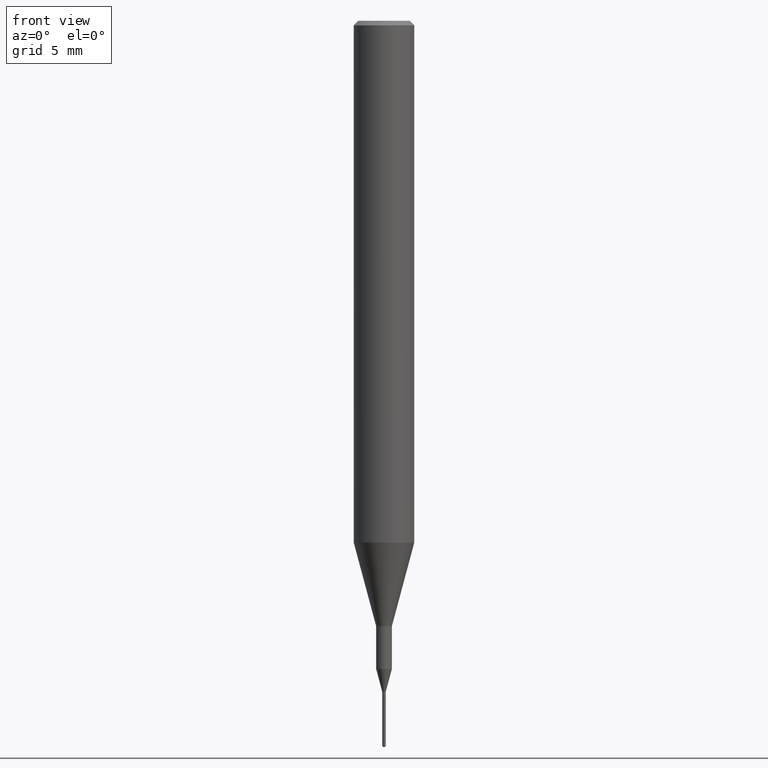
[diagram: clean part render]
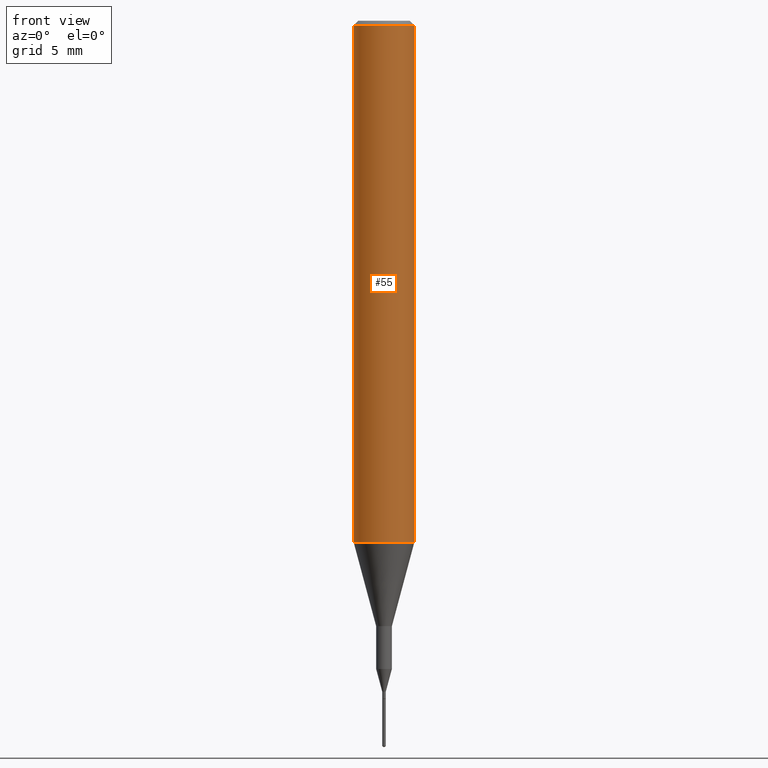
[diagram: same view with one face highlighted and labeled with its STEP entity id]
A machine part, front view. The second image highlights one B-rep face of the part: STEP entity #55.
In plain terms, the highlighted cylindrical surface (edge-blend (fillet) strip) has radius 1.5875 mm, axis along (-0, 0, 1).
Its self-contained STEP definition (entity closure, byte-faithful):
#18 = DIRECTION ( 'NONE',  ( 1.000000000000000000, -6.982962677686266711E-15, 4.876176775795935793E-29 ) ) ;
#27 = DIRECTION ( 'NONE',  ( -2.445468806185136877E-29, 3.491481338843145188E-15, 1.000000000000000000 ) ) ;
#50 = DIRECTION ( 'NONE',  ( -2.445468806185136877E-29, 3.491481338843145188E-15, 1.000000000000000000 ) ) ;
#55 = ADVANCED_FACE ( 'NONE', ( #208 ), #71, .T. ) ;
#56 = CARTESIAN_POINT ( 'NONE',  ( 2.292627005798580623E-31, -3.273263755165470801E-17, -0.009375000000000062103 ) ) ;
#71 = CYLINDRICAL_SURFACE ( 'NONE', #548, 0.06250000000000006939 ) ;
#78 = CIRCLE ( 'NONE', #367, 0.06250000000000000000 ) ;
#102 = LINE ( 'NONE', #332, #261 ) ;
#154 = VERTEX_POINT ( 'NONE', #214 ) ;
#160 = CARTESIAN_POINT ( 'NONE',  ( 0.000000000000000000, 0.000000000000000000, 0.000000000000000000 ) ) ;
#166 = ORIENTED_EDGE ( 'NONE', *, *, #248, .T. ) ;
#179 = CARTESIAN_POINT ( 'NONE',  ( 0.06250000000000012490, -4.198131499960668153E-15, -1.077392650149939346 ) ) ;
#201 = AXIS2_PLACEMENT_3D ( 'NONE', #410, #466, #224 ) ;
#208 = FACE_OUTER_BOUND ( 'NONE', #488, .T. ) ;
#214 = CARTESIAN_POINT ( 'NONE',  ( 0.06250000000000000000, -4.691678049070463404E-16, -0.009375000000000062103 ) ) ;
#218 = ORIENTED_EDGE ( 'NONE', *, *, #372, .F. ) ;
#224 = DIRECTION ( 'NONE',  ( 1.000000000000000000, -6.982962677686264344E-15, 0.000000000000000000 ) ) ;
#229 = EDGE_CURVE ( 'NONE', #255, #154, #528, .T. ) ;
#248 = EDGE_CURVE ( 'NONE', #354, #255, #452, .T. ) ;
#249 = DIRECTION ( 'NONE',  ( -2.445468806185136597E-29, 3.491481338843145583E-15, 1.000000000000000000 ) ) ;
#255 = VERTEX_POINT ( 'NONE', #179 ) ;
#261 = VECTOR ( 'NONE', #50, 39.37007874015748143 ) ;
#268 = CARTESIAN_POINT ( 'NONE',  ( -0.06250000000000012490, -3.317607122755211895E-15, -1.077392650149939346 ) ) ;
#283 = DIRECTION ( 'NONE',  ( 1.000000000000000000, -6.982962677686266711E-15, 0.000000000000000000 ) ) ;
#293 = VERTEX_POINT ( 'NONE', #549 ) ;
#302 = CARTESIAN_POINT ( 'NONE',  ( 0.06250000000000006939, -4.364351673553921624E-16, 3.047610484872463374E-30 ) ) ;
#332 = CARTESIAN_POINT ( 'NONE',  ( -0.06250000000000006939, 4.440892098500631092E-16, -3.074334431409319267E-30 ) ) ;
#354 = VERTEX_POINT ( 'NONE', #268 ) ;
#361 = EDGE_CURVE ( 'NONE', #354, #293, #102, .T. ) ;
#367 = AXIS2_PLACEMENT_3D ( 'NONE', #56, #513, #283 ) ;
#372 = EDGE_CURVE ( 'NONE', #293, #154, #78, .T. ) ;
#410 = CARTESIAN_POINT ( 'NONE',  ( 2.634730117954813298E-29, -3.761696332605275695E-15, -1.077392650149939346 ) ) ;
#433 = ORIENTED_EDGE ( 'NONE', *, *, #229, .T. ) ;
#452 = CIRCLE ( 'NONE', #201, 0.06250000000000012490 ) ;
#459 = ORIENTED_EDGE ( 'NONE', *, *, #361, .F. ) ;
#466 = DIRECTION ( 'NONE',  ( -2.445468806185136597E-29, 3.491481338843145583E-15, 1.000000000000000000 ) ) ;
#488 = EDGE_LOOP ( 'NONE', ( #459, #166, #433, #218 ) ) ;
#513 = DIRECTION ( 'NONE',  ( -2.445468806185136597E-29, 3.491481338843145583E-15, 1.000000000000000000 ) ) ;
#528 = LINE ( 'NONE', #302, #562 ) ;
#548 = AXIS2_PLACEMENT_3D ( 'NONE', #160, #249, #18 ) ;
#549 = CARTESIAN_POINT ( 'NONE',  ( -0.06250000000000000000, -1.453125275228401137E-15, -0.009375000000000062103 ) ) ;
#562 = VECTOR ( 'NONE', #27, 39.37007874015748143 ) ;